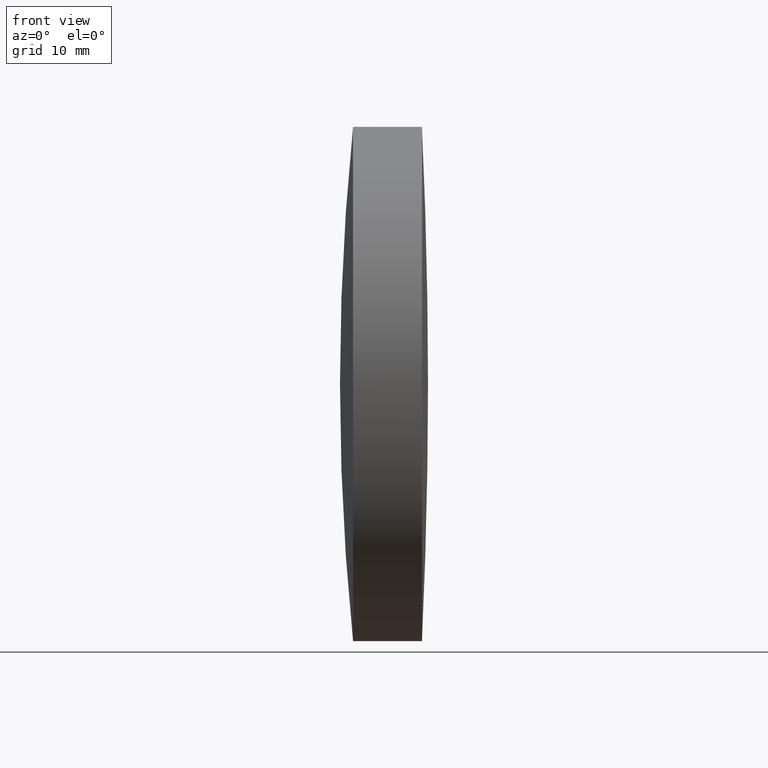
[diagram: clean part render]
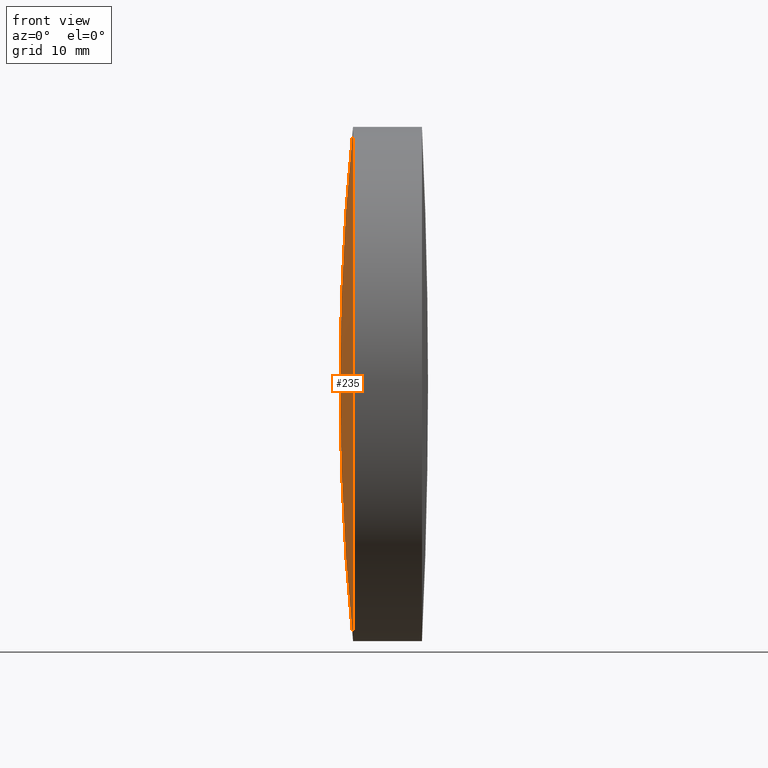
[diagram: same view with one face highlighted and labeled with its STEP entity id]
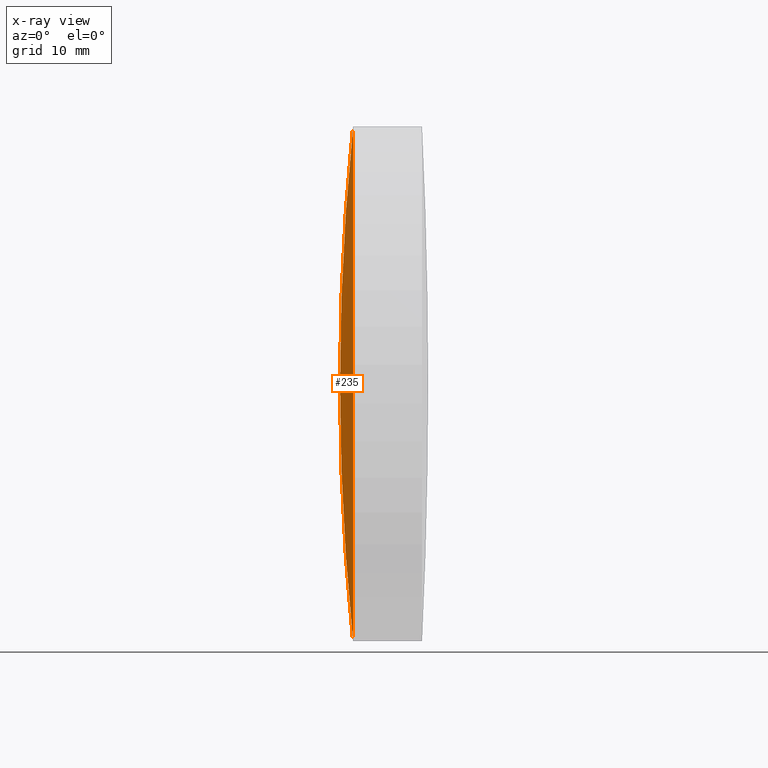
[diagram: x-ray of the same camera — body ghosted, the highlighted face saturated]
A machine part, front view. The second image highlights one B-rep face of the part: STEP entity #235.
The next image is the same camera in x-ray: the body ghosted, the highlighted face saturated — about 0% of this face is hidden behind the body in this view.
In plain terms, the highlighted spherical surface has radius 246.72 mm.
Its self-contained STEP definition (entity closure, byte-faithful):
#8 = DIRECTION ( 'NONE',  ( 0.0000000000000000000, 0.0000000000000000000, 1.000000000000000000 ) ) ;
#15 = VERTEX_POINT ( 'NONE', #214 ) ;
#24 = AXIS2_PLACEMENT_3D ( 'NONE', #193, #199, #36 ) ;
#36 = DIRECTION ( 'NONE',  ( 0.0000000000000000000, 0.0000000000000000000, 1.000000000000000000 ) ) ;
#38 = ORIENTED_EDGE ( 'NONE', *, *, #300, .T. ) ;
#52 = VERTEX_POINT ( 'NONE', #290 ) ;
#65 = DIRECTION ( 'NONE',  ( -0.0000000000000000000, 1.000000000000000000, 1.224646799147353200E-016 ) ) ;
#66 = DIRECTION ( 'NONE',  ( 0.0000000000000000000, -1.000000000000000000, 0.0000000000000000000 ) ) ;
#80 = ORIENTED_EDGE ( 'NONE', *, *, #253, .T. ) ;
#86 = ORIENTED_EDGE ( 'NONE', *, *, #130, .F. ) ;
#87 = CARTESIAN_POINT ( 'NONE',  ( 505.4910746197044200, 0.0000000000000000000, -1.842447540899294800E-013 ) ) ;
#95 = CARTESIAN_POINT ( 'NONE',  ( 258.7710746197045100, 0.0000000000000000000, -1.691375111756477200E-013 ) ) ;
#123 = AXIS2_PLACEMENT_3D ( 'NONE', #255, #174, #8 ) ;
#130 = EDGE_CURVE ( 'NONE', #52, #156, #203, .T. ) ;
#156 = VERTEX_POINT ( 'NONE', #95 ) ;
#174 = DIRECTION ( 'NONE',  ( -1.000000000000000000, -0.0000000000000000000, -0.0000000000000000000 ) ) ;
#193 = CARTESIAN_POINT ( 'NONE',  ( 505.4910746197044200, 0.0000000000000000000, -1.842447540899294800E-013 ) ) ;
#199 = DIRECTION ( 'NONE',  ( 0.0000000000000000000, 1.000000000000000000, 0.0000000000000000000 ) ) ;
#203 = CIRCLE ( 'NONE', #245, 246.7199999999999700 ) ;
#214 = CARTESIAN_POINT ( 'NONE',  ( 260.0409607472518000, 0.0000000000000000000, 25.00000000000009900 ) ) ;
#219 = FACE_OUTER_BOUND ( 'NONE', #307, .T. ) ;
#226 = CIRCLE ( 'NONE', #123, 25.00000000000008900 ) ;
#227 = CIRCLE ( 'NONE', #308, 246.7199999999999700 ) ;
#235 = ADVANCED_FACE ( 'NONE', ( #219 ), #311, .T. ) ;
#245 = AXIS2_PLACEMENT_3D ( 'NONE', #279, #65, #342 ) ;
#253 = EDGE_CURVE ( 'NONE', #15, #156, #227, .T. ) ;
#255 = CARTESIAN_POINT ( 'NONE',  ( 260.0409607472518000, 0.0000000000000000000, 0.0000000000000000000 ) ) ;
#279 = CARTESIAN_POINT ( 'NONE',  ( 505.4910746197044200, 0.0000000000000000000, -1.842447540899294800E-013 ) ) ;
#290 = CARTESIAN_POINT ( 'NONE',  ( 260.0409607472518000, 3.061616997868394900E-015, -25.00000000000028100 ) ) ;
#300 = EDGE_CURVE ( 'NONE', #52, #15, #226, .T. ) ;
#302 = DIRECTION ( 'NONE',  ( 0.0000000000000000000, 0.0000000000000000000, -1.000000000000000000 ) ) ;
#307 = EDGE_LOOP ( 'NONE', ( #86, #38, #80 ) ) ;
#308 = AXIS2_PLACEMENT_3D ( 'NONE', #87, #66, #302 ) ;
#311 = SPHERICAL_SURFACE ( 'NONE', #24, 246.7199999999999700 ) ;
#342 = DIRECTION ( 'NONE',  ( 0.0000000000000000000, -1.224646799147353000E-016, 1.000000000000000000 ) ) ;